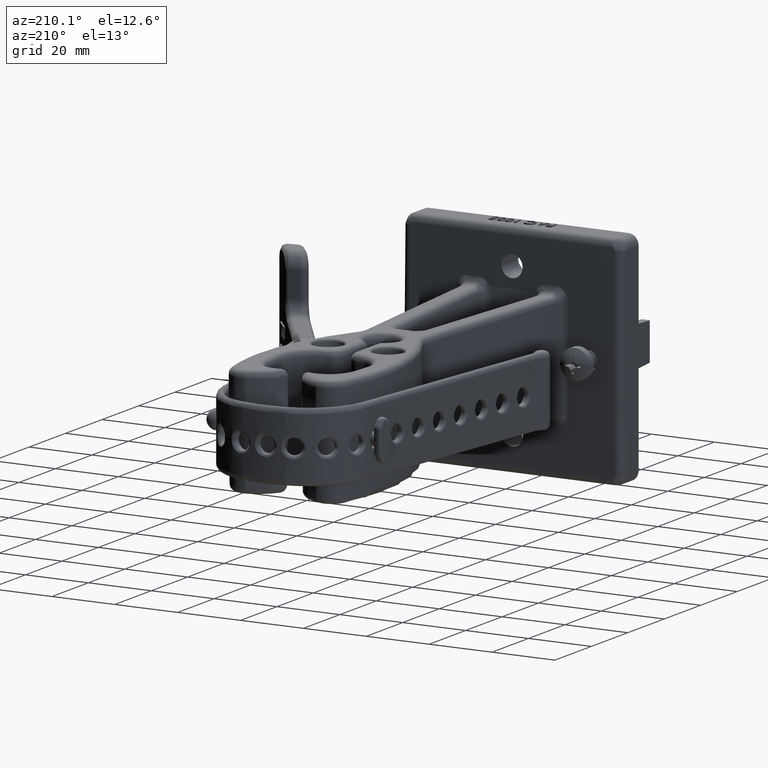
[diagram: clean part render]
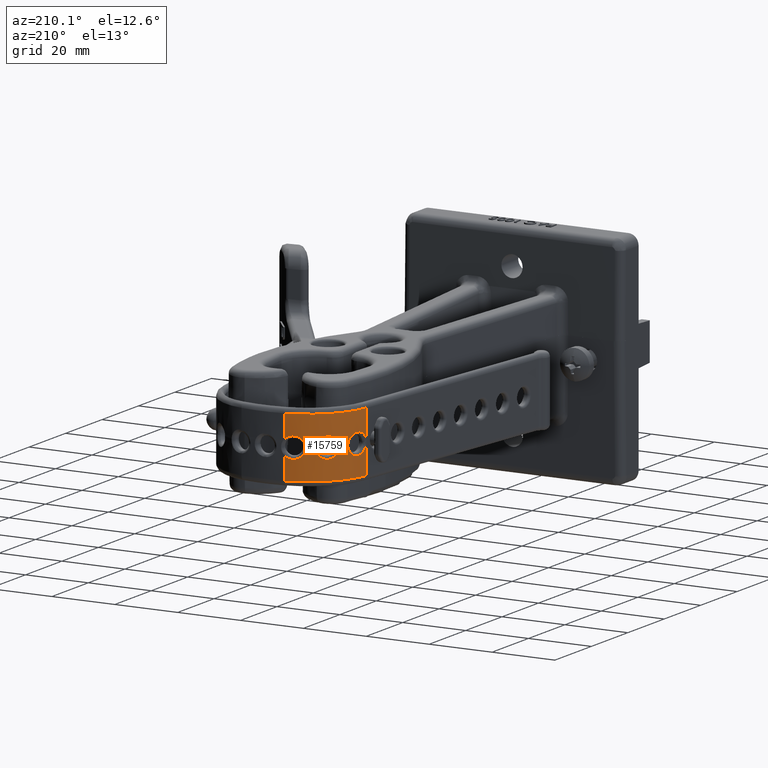
[diagram: same view with one face highlighted and labeled with its STEP entity id]
A machine part, auxiliary view. The second image highlights one B-rep face of the part: STEP entity #15759.
In plain terms, the highlighted cylindrical surface (partial cylindrical patch) has radius 19.9448 mm, axis along (0, 0, 1).
Its self-contained STEP definition (entity closure, byte-faithful):
#2503 = CARTESIAN_POINT ( 'NONE',  ( -0.8238750532993759400, 4.832999887512366800, 8.258270324734888000E-005 ) ) ;
#2504 = CARTESIAN_POINT ( 'NONE',  ( -0.9046058795028802900, 4.572830319396823400, -0.01562964901921960100 ) ) ;
#2509 = CARTESIAN_POINT ( 'NONE',  ( -0.5806278617910979300, 5.113719189892758100, 8.258270324746548600E-005 ) ) ;
#2510 = CARTESIAN_POINT ( 'NONE',  ( -0.7724659938447958600, 4.918951081787924700, -7.721247508028443000E-005 ) ) ;
#2550 = CARTESIAN_POINT ( 'NONE',  ( -0.2669934998263762100, 5.246135022495447100, -0.3749999999999998900 ) ) ;
#2551 = CARTESIAN_POINT ( 'NONE',  ( -0.2669934998263762100, 5.246135022495447100, -0.08806893851219231600 ) ) ;
#2552 = CARTESIAN_POINT ( 'NONE',  ( -0.2669934998263762100, 5.246135022495447100, 0.08806893851219189900 ) ) ;
#2553 = CARTESIAN_POINT ( 'NONE',  ( -0.2669934998263762100, 5.246135022495447100, 0.3750000000000000600 ) ) ;
#2561 = CARTESIAN_POINT ( 'NONE',  ( -0.9046058795028802900, 4.572830319396823400, 0.3750000000000000600 ) ) ;
#2562 = CARTESIAN_POINT ( 'NONE',  ( -0.9046058795028802900, 4.572830319396823400, -0.3749999999999998900 ) ) ;
#2563 = CARTESIAN_POINT ( 'NONE',  ( -0.9046058795028802900, 4.572830319396823400, 0.01562964901858396700 ) ) ;
#15759 = ADVANCED_FACE ( 'NONE', ( #25085, #25086 ), #25082, .T. ) ;
#16729 = VERTEX_POINT ( 'NONE', #2503 ) ;
#16731 = VERTEX_POINT ( 'NONE', #2504 ) ;
#16740 = VERTEX_POINT ( 'NONE', #2509 ) ;
#16742 = VERTEX_POINT ( 'NONE', #2510 ) ;
#16821 = VERTEX_POINT ( 'NONE', #2550 ) ;
#16823 = VERTEX_POINT ( 'NONE', #2551 ) ;
#16825 = VERTEX_POINT ( 'NONE', #2552 ) ;
#16827 = VERTEX_POINT ( 'NONE', #2553 ) ;
#16843 = VERTEX_POINT ( 'NONE', #2561 ) ;
#16845 = VERTEX_POINT ( 'NONE', #2562 ) ;
#16847 = VERTEX_POINT ( 'NONE', #2563 ) ;
#20179 = ORIENTED_EDGE ( 'NONE', *, *, #50050, .T. ) ;
#20180 = ORIENTED_EDGE ( 'NONE', *, *, #50131, .T. ) ;
#20181 = ORIENTED_EDGE ( 'NONE', *, *, #50106, .T. ) ;
#20182 = ORIENTED_EDGE ( 'NONE', *, *, #50132, .T. ) ;
#20183 = ORIENTED_EDGE ( 'NONE', *, *, #50111, .T. ) ;
#20184 = ORIENTED_EDGE ( 'NONE', *, *, #50128, .T. ) ;
#20185 = ORIENTED_EDGE ( 'NONE', *, *, #50134, .F. ) ;
#20186 = ORIENTED_EDGE ( 'NONE', *, *, #50044, .T. ) ;
#20187 = ORIENTED_EDGE ( 'NONE', *, *, #50124, .T. ) ;
#20188 = ORIENTED_EDGE ( 'NONE', *, *, #50136, .F. ) ;
#20189 = ORIENTED_EDGE ( 'NONE', *, *, #50129, .F. ) ;
#23963 = AXIS2_PLACEMENT_3D ( 'NONE', #41409, #41408, #41391 ) ;
#25082 = CYLINDRICAL_SURFACE ( 'NONE', #23963, 0.7852278687097016300 ) ;
#25085 = FACE_BOUND ( 'NONE', #48973, .T. ) ;
#25086 = FACE_OUTER_BOUND ( 'NONE', #48978, .T. ) ;
#30494 = AXIS2_PLACEMENT_3D ( 'NONE', #42698, #42705, #42706 ) ;
#30495 = AXIS2_PLACEMENT_3D ( 'NONE', #42702, #42707, #42708 ) ;
#37288 = VECTOR ( 'NONE', #42517, 39.37007874015748100 ) ;
#37289 = LINE ( 'NONE', #42516, #37288 ) ;
#37290 = VECTOR ( 'NONE', #42434, 39.37007874015748100 ) ;
#37292 = LINE ( 'NONE', #42410, #37290 ) ;
#38598 = B_SPLINE_CURVE_WITH_KNOTS ( 'NONE', 3,
 ( #40026, #41596, #41597, #41598, #41599, #41600, #41601, #41602, #41603, #41604, #41605, #41606, #41607, #41608, #41609, #41610, #41611, #41612, #41613, #41614, #41615, #41616, #41617, #41618, #41619, #41620, #41621, #41622, #41623, #41624, #41625, #41626, #41627, #41628 ),
 .UNSPECIFIED., .F., .F.,
 ( 4, 2, 2, 2, 2, 2, 2, 2, 2, 2, 2, 2, 2, 2, 2, 2, 4 ),
 ( 0.0004014216207782169800, 0.001052801804666286600, 0.001704181988554356100, 0.002355562172442424800, 0.003006942356330493600, 0.003658322540218562900, 0.004309702724106631800, 0.004961082907994700600, 0.005612463091882769400, 0.006263843275770838300, 0.006915223459658906300, 0.007566603643546975100, 0.008217983827435044000, 0.008869364011323112000, 0.009520744195211181700, 0.01017212437909925000, 0.01082350456298731800 ),
 .UNSPECIFIED. ) ;
#38602 = B_SPLINE_CURVE_WITH_KNOTS ( 'NONE', 3,
 ( #41671, #41676, #41677, #41678, #41679, #41680, #41681, #41682, #41683, #41684, #41685, #41686, #41687, #41688, #41689, #41690, #41691, #41692, #41693, #41694, #41695, #41696, #41697, #41698, #41699, #41700, #41701, #41702, #41703, #41704, #41705, #41706, #41707, #41708 ),
 .UNSPECIFIED., .F., .F.,
 ( 4, 2, 2, 2, 2, 2, 2, 2, 2, 2, 2, 2, 2, 2, 2, 2, 4 ),
 ( 1.961196961934722700E-006, 0.0006783076573385214600, 0.001354654117715108300, 0.002031000578091695000, 0.002707347038468281700, 0.003383693498844868300, 0.004060039959221455400, 0.004736386419598041600, 0.005412732879974628700, 0.006089079340351215800, 0.006765425800727802000, 0.007441772261104389100, 0.008118118721480976200, 0.008794465181857563300, 0.009470811642234148700, 0.01014715810261073600, 0.01082350456298732300 ),
 .UNSPECIFIED. ) ;
#38636 = B_SPLINE_CURVE_WITH_KNOTS ( 'NONE', 3,
 ( #42660, #42664, #42665, #42666, #42667, #42668, #42669, #42670, #42671, #42672, #42673, #42674, #42675, #42676, #42677, #42678, #42679, #42680, #42681, #42682, #42683, #42684, #42685, #42686, #42687, #42688, #42689, #42690, #42691, #42692, #42693, #42694 ),
 .UNSPECIFIED., .F., .F.,
 ( 4, 2, 2, 2, 2, 2, 2, 2, 2, 2, 2, 2, 2, 2, 2, 4 ),
 ( 0.01082350456298731800, 0.01147463559023208600, 0.01212576661747685200, 0.01277689764472162000, 0.01342802867196638900, 0.01473029072645589900, 0.01538142175370067400, 0.01603255278094544900, 0.01668368380819022400, 0.01733481483543499600, 0.01798594586267977100, 0.01863707688992454600, 0.01928820791716932100, 0.01993933894441409600, 0.02059046997165887200, 0.02124160099890364700 ),
 .UNSPECIFIED. ) ;
#38637 = B_SPLINE_CURVE_WITH_KNOTS ( 'NONE', 3,
 ( #42710, #42715, #42716, #42717, #42718, #42719, #42720, #42721, #42722, #42723, #42724, #42725, #42726, #42727, #42728, #42729, #42730, #42731, #42732, #42733, #42734, #42735, #42736, #42737, #42738, #42739, #42740, #42741, #42742, #42743, #42744, #42745, #42746, #42747 ),
 .UNSPECIFIED., .F., .F.,
 ( 4, 2, 2, 2, 2, 2, 2, 2, 2, 2, 2, 2, 2, 2, 2, 2, 4 ),
 ( 0.01082350456298732300, 0.01149985161718272000, 0.01217619867137811500, 0.01285254572557351300, 0.01352889277976891000, 0.01420523983396430700, 0.01488158688815970400, 0.01555793394235510000, 0.01623428099655049900, 0.01691062805074589800, 0.01758697510494129300, 0.01826332215913669200, 0.01893966921333208700, 0.01961601626752748600, 0.02029236332172288500, 0.02096871037591828400, 0.02164505743011368700 ),
 .UNSPECIFIED. ) ;
#38638 = B_SPLINE_CURVE_WITH_KNOTS ( 'NONE', 3,
 ( #42714, #42749, #42750, #42751, #42752, #42753, #42754, #42755, #42756, #42757, #42758, #42759, #42760, #42761, #42762, #42763, #42764, #42765, #42766, #42767, #42768, #42769, #42770, #42771, #42772, #42773, #42774, #42775, #42776, #42777, #42778, #42779, #42780, #42781, #42782, #42783, #42784, #42785, #42786, #42787, #42788, #42789, #42790, #42791, #42792, #42793, #42794, #42795, #42796, #42797, #42798, #42799, #42800, #42801 ),
 .UNSPECIFIED., .F., .F.,
 ( 4, 2, 2, 2, 2, 2, 2, 2, 2, 2, 2, 2, 2, 2, 2, 2, 2, 2, 2, 2, 2, 2, 2, 2, 2, 2, 4 ),
 ( 0.01315466823470624700, 0.01366816418692524300, 0.01418166013914424000, 0.01469515609136323700, 0.01520865204358223600, 0.01623564394802025400, 0.01726263585245827300, 0.01777613180467728000, 0.01828962775689629100, 0.01880312370911529900, 0.01931661966133430700, 0.01983011561355331800, 0.02034361156577232600, 0.02137060347021034500, 0.02239759537464836000, 0.02291109132686736800, 0.02342458727908637600, 0.02393808323130538700, 0.02445157918352439500, 0.02496507513574340600, 0.02547857108796241400, 0.02650556299240045700, 0.02753255489683850000, 0.02804605084905750800, 0.02855954680127651600, 0.02907304275349552300, 0.02958653870571453100 ),
 .UNSPECIFIED. ) ;
#40026 = CARTESIAN_POINT ( 'NONE',  ( -0.9046058795028802900, 4.572830319396823400, -0.01562964901921960100 ) ) ;
#41391 = DIRECTION ( 'NONE',  ( 1.000000000000000000, 0.0000000000000000000, 0.0000000000000000000 ) ) ;
#41408 = DIRECTION ( 'NONE',  ( 0.0000000000000000000, 0.0000000000000000000, 1.000000000000000000 ) ) ;
#41409 = CARTESIAN_POINT ( 'NONE',  ( -0.1256563924394588100, 4.473731871366530800, 0.0000000000000000000 ) ) ;
#41596 = CARTESIAN_POINT ( 'NONE',  ( -0.9044720777072163800, 4.573882049693032100, -0.02398984992228340300 ) ) ;
#41597 = CARTESIAN_POINT ( 'NONE',  ( -0.9042320265851664400, 4.575762813749543400, -0.03220101868346691300 ) ) ;
#41598 = CARTESIAN_POINT ( 'NONE',  ( -0.9035001220626451800, 4.581200301962903500, -0.04832121892999397000 ) ) ;
#41599 = CARTESIAN_POINT ( 'NONE',  ( -0.9030135475190852500, 4.584711787266298800, -0.05606138904049493700 ) ) ;
#41600 = CARTESIAN_POINT ( 'NONE',  ( -0.9017731494652258000, 4.593077871510717900, -0.07062649421987202100 ) ) ;
#41601 = CARTESIAN_POINT ( 'NONE',  ( -0.9010100846049531300, 4.597992906931248000, -0.07755247987892359400 ) ) ;
#41602 = CARTESIAN_POINT ( 'NONE',  ( -0.8991593229240614200, 4.609036599465781600, -0.09035686495205011400 ) ) ;
#41603 = CARTESIAN_POINT ( 'NONE',  ( -0.8980876879622834400, 4.615070753043769800, -0.09614587489038094200 ) ) ;
#41604 = CARTESIAN_POINT ( 'NONE',  ( -0.8955902828128075000, 4.628096991233039900, -0.1065602218101374100 ) ) ;
#41605 = CARTESIAN_POINT ( 'NONE',  ( -0.8941466442477282700, 4.635168437950653700, -0.1112210533022685900 ) ) ;
#41606 = CARTESIAN_POINT ( 'NONE',  ( -0.8909235487047899600, 4.649814839584304400, -0.1190711510346082200 ) ) ;
#41607 = CARTESIAN_POINT ( 'NONE',  ( -0.8891460011420268000, 4.657393217842299600, -0.1222863888965004700 ) ) ;
#41608 = CARTESIAN_POINT ( 'NONE',  ( -0.8852118804725129800, 4.673039004668280100, -0.1273216652216104800 ) ) ;
#41609 = CARTESIAN_POINT ( 'NONE',  ( -0.8830378820719231300, 4.681159619275471000, -0.1291354494483234500 ) ) ;
#41610 = CARTESIAN_POINT ( 'NONE',  ( -0.8784398385695588700, 4.697271744035717200, -0.1312093589991346100 ) ) ;
#41611 = CARTESIAN_POINT ( 'NONE',  ( -0.8760003240422250500, 4.705331705785496000, -0.1315007257749384900 ) ) ;
#41612 = CARTESIAN_POINT ( 'NONE',  ( -0.8708317082806750200, 4.721458025934294900, -0.1305733570352894100 ) ) ;
#41613 = CARTESIAN_POINT ( 'NONE',  ( -0.8681110567959492400, 4.729487866325726500, -0.1293391340900641200 ) ) ;
#41614 = CARTESIAN_POINT ( 'NONE',  ( -0.8626075953134920700, 4.744938401827712800, -0.1254347957094102700 ) ) ;
#41615 = CARTESIAN_POINT ( 'NONE',  ( -0.8597998962514744600, 4.752437968311646400, -0.1227632821381308600 ) ) ;
#41616 = CARTESIAN_POINT ( 'NONE',  ( -0.8541124957354046000, 4.766981727691558000, -0.1159171741951697400 ) ) ;
#41617 = CARTESIAN_POINT ( 'NONE',  ( -0.8513011390273188500, 4.773850507374808300, -0.1118200542732078500 ) ) ;
#41618 = CARTESIAN_POINT ( 'NONE',  ( -0.8458531433511635700, 4.786698537173372800, -0.1023750865851842200 ) ) ;
#41619 = CARTESIAN_POINT ( 'NONE',  ( -0.8431875283845267100, 4.792743371904957300, -0.09696808888752699000 ) ) ;
#41620 = CARTESIAN_POINT ( 'NONE',  ( -0.8381965330498317700, 4.803740684196352400, -0.08500767394831988700 ) ) ;
#41621 = CARTESIAN_POINT ( 'NONE',  ( -0.8359010968393969500, 4.808631807983259100, -0.07854120783002756200 ) ) ;
#41622 = CARTESIAN_POINT ( 'NONE',  ( -0.8317846993587687500, 4.817226153475144400, -0.06463035934134860000 ) ) ;
#41623 = CARTESIAN_POINT ( 'NONE',  ( -0.8299491544533128500, 4.820957406049180000, -0.05709298369152877200 ) ) ;
#41624 = CARTESIAN_POINT ( 'NONE',  ( -0.8269826450470918500, 4.826910797640579200, -0.04154863520051328700 ) ) ;
#41625 = CARTESIAN_POINT ( 'NONE',  ( -0.8258364692693744800, 4.829166266235714200, -0.03352463396658106300 ) ) ;
#41626 = CARTESIAN_POINT ( 'NONE',  ( -0.8242766646139679800, 4.832222407297931200, -0.01696119573882316800 ) ) ;
#41627 = CARTESIAN_POINT ( 'NONE',  ( -0.8238724714747820400, 4.833004905153875300, -0.008397400685372003300 ) ) ;
#41628 = CARTESIAN_POINT ( 'NONE',  ( -0.8238750532993759400, 4.832999887512366800, 8.258270324734888000E-005 ) ) ;
#41671 = CARTESIAN_POINT ( 'NONE',  ( -0.7724659938447958600, 4.918951081787924700, -7.721247508028443000E-005 ) ) ;
#41676 = CARTESIAN_POINT ( 'NONE',  ( -0.7724628627254092100, 4.918955630643937500, -0.008953148986870686900 ) ) ;
#41677 = CARTESIAN_POINT ( 'NONE',  ( -0.7719266417373472600, 4.919737433344108600, -0.01766103331284528100 ) ) ;
#41678 = CARTESIAN_POINT ( 'NONE',  ( -0.7698277671063384900, 4.922763536733540900, -0.03475821298568483600 ) ) ;
#41679 = CARTESIAN_POINT ( 'NONE',  ( -0.7682355251786601200, 4.925049675602147100, -0.04324383618814475100 ) ) ;
#41680 = CARTESIAN_POINT ( 'NONE',  ( -0.7640806155682554600, 4.930908219808044300, -0.05928754066594894800 ) ) ;
#41681 = CARTESIAN_POINT ( 'NONE',  ( -0.7615327255869879200, 4.934459978186318100, -0.06686058854384886700 ) ) ;
#41682 = CARTESIAN_POINT ( 'NONE',  ( -0.7554614106431104500, 4.942725195963364000, -0.08113618977089874500 ) ) ;
#41683 = CARTESIAN_POINT ( 'NONE',  ( -0.7519231597943156800, 4.947455092017000000, -0.08782512047080887100 ) ) ;
#41684 = CARTESIAN_POINT ( 'NONE',  ( -0.7441194762610708900, 4.957598761767614300, -0.09976437087428068100 ) ) ;
#41685 = CARTESIAN_POINT ( 'NONE',  ( -0.7398222323129969300, 4.963057331367162200, -0.1051003989423997000 ) ) ;
#41686 = CARTESIAN_POINT ( 'NONE',  ( -0.7303611259010304200, 4.974702199830770300, -0.1144930709336284700 ) ) ;
#41687 = CARTESIAN_POINT ( 'NONE',  ( -0.7253120976819572600, 4.980744945333735400, -0.1184279848731520500 ) ) ;
#41688 = CARTESIAN_POINT ( 'NONE',  ( -0.7146598257904026600, 4.993081635498903400, -0.1247719188863560000 ) ) ;
#41689 = CARTESIAN_POINT ( 'NONE',  ( -0.7089892921654977800, 4.999451070150590800, -0.1272091455568324900 ) ) ;
#41690 = CARTESIAN_POINT ( 'NONE',  ( -0.6972412838053490000, 5.012200681823723700, -0.1304495443038769000 ) ) ;
#41691 = CARTESIAN_POINT ( 'NONE',  ( -0.6912312794540113000, 5.018511300809001000, -0.1312504949417558400 ) ) ;
#41692 = CARTESIAN_POINT ( 'NONE',  ( -0.6789339858556515700, 5.030996157131169400, -0.1312495046036039300 ) ) ;
#41693 = CARTESIAN_POINT ( 'NONE',  ( -0.6725873699145763500, 5.037224280620690400, -0.1304228537494804800 ) ) ;
#41694 = CARTESIAN_POINT ( 'NONE',  ( -0.6600786175554317300, 5.049101382820723800, -0.1271797026016108200 ) ) ;
#41695 = CARTESIAN_POINT ( 'NONE',  ( -0.6538797656495266600, 5.054791381308736400, -0.1247781291707470600 ) ) ;
#41696 = CARTESIAN_POINT ( 'NONE',  ( -0.6416263793095184900, 5.065698980882768200, -0.1183865588218406300 ) ) ;
#41697 = CARTESIAN_POINT ( 'NONE',  ( -0.6356005020555605100, 5.070887441238709500, -0.1143908736261220100 ) ) ;
#41698 = CARTESIAN_POINT ( 'NONE',  ( -0.6242344715330954100, 5.080409436971873300, -0.1050933037585521400 ) ) ;
#41699 = CARTESIAN_POINT ( 'NONE',  ( -0.6188252007694414700, 5.084804092754178700, -0.09975621512175915400 ) ) ;
#41700 = CARTESIAN_POINT ( 'NONE',  ( -0.6086807788254529100, 5.092853971939337800, -0.08765120883198787600 ) ) ;
#41701 = CARTESIAN_POINT ( 'NONE',  ( -0.6041011625608685400, 5.096387011459770900, -0.08107012315094132300 ) ) ;
#41702 = CARTESIAN_POINT ( 'NONE',  ( -0.5959720352361080900, 5.102549824101529000, -0.06686099343472731700 ) ) ;
#41703 = CARTESIAN_POINT ( 'NONE',  ( -0.5923903396333148900, 5.105202420052448200, -0.05913324697689913100 ) ) ;
#41704 = CARTESIAN_POINT ( 'NONE',  ( -0.5866110104397922500, 5.109433429855274200, -0.04307413174536804700 ) ) ;
#41705 = CARTESIAN_POINT ( 'NONE',  ( -0.5844014703679049100, 5.111022361993386600, -0.03477251419683192300 ) ) ;
#41706 = CARTESIAN_POINT ( 'NONE',  ( -0.5813989093600574500, 5.113173013488205000, -0.01761556919737574500 ) ) ;
#41707 = CARTESIAN_POINT ( 'NONE',  ( -0.5806230863419455900, 5.113722584793025700, -0.008722423790365044200 ) ) ;
#41708 = CARTESIAN_POINT ( 'NONE',  ( -0.5806278617910979300, 5.113719189892758100, 8.258270324746548600E-005 ) ) ;
#42410 = CARTESIAN_POINT ( 'NONE',  ( -0.2669934998263762100, 5.246135022495447100, 0.3750000000000000600 ) ) ;
#42434 = DIRECTION ( 'NONE',  ( 0.0000000000000000000, 0.0000000000000000000, -1.000000000000000000 ) ) ;
#42516 = CARTESIAN_POINT ( 'NONE',  ( -0.2669934998263762100, 5.246135022495447100, 0.3750000000000000600 ) ) ;
#42517 = DIRECTION ( 'NONE',  ( 0.0000000000000000000, 0.0000000000000000000, -1.000000000000000000 ) ) ;
#42660 = CARTESIAN_POINT ( 'NONE',  ( -0.8238750532993759400, 4.832999887512366800, 8.258270324734888000E-005 ) ) ;
#42664 = CARTESIAN_POINT ( 'NONE',  ( -0.8238776341364072400, 4.832994871790134500, 0.008559322449753260100 ) ) ;
#42665 = CARTESIAN_POINT ( 'NONE',  ( -0.8242869808322169600, 4.832202344609140000, 0.01712090560345982900 ) ) ;
#42666 = CARTESIAN_POINT ( 'NONE',  ( -0.8258546394172030500, 4.829130512548633000, 0.03366649585325521400 ) ) ;
#42667 = CARTESIAN_POINT ( 'NONE',  ( -0.8270044860376027900, 4.826867531662975900, 0.04168724969756561900 ) ) ;
#42668 = CARTESIAN_POINT ( 'NONE',  ( -0.8299807679300810200, 4.820893385731964500, 0.05723402907332865400 ) ) ;
#42669 = CARTESIAN_POINT ( 'NONE',  ( -0.8318175955121514000, 4.817158582062755400, 0.06475588167079407400 ) ) ;
#42670 = CARTESIAN_POINT ( 'NONE',  ( -0.8359369874183084600, 4.808555745576827100, 0.07864789973177227500 ) ) ;
#42671 = CARTESIAN_POINT ( 'NONE',  ( -0.8382352131771038100, 4.803657424114885700, 0.08511172646409478900 ) ) ;
#42672 = CARTESIAN_POINT ( 'NONE',  ( -0.8457376730857838500, 4.787120314593528800, 0.1030562307982276100 ) ) ;
#42673 = CARTESIAN_POINT ( 'NONE',  ( -0.8513160486693720500, 4.774138634888271500, 0.1125641151251555700 ) ) ;
#42674 = CARTESIAN_POINT ( 'NONE',  ( -0.8598351781961696100, 4.752344783766364600, 0.1227991265487142200 ) ) ;
#42675 = CARTESIAN_POINT ( 'NONE',  ( -0.8626395755035021200, 4.744851328228649300, 0.1254623388366527800 ) ) ;
#42676 = CARTESIAN_POINT ( 'NONE',  ( -0.8681378130983743400, 4.729410012756710000, 0.1293532084382281500 ) ) ;
#42677 = CARTESIAN_POINT ( 'NONE',  ( -0.8708567139301275400, 4.721382703155704500, 0.1305822629603956300 ) ) ;
#42678 = CARTESIAN_POINT ( 'NONE',  ( -0.8760221199928109900, 4.705260980873294600, 0.1315001769165925800 ) ) ;
#42679 = CARTESIAN_POINT ( 'NONE',  ( -0.8784602183631046200, 4.697203026942944800, 0.1312046676407691800 ) ) ;
#42680 = CARTESIAN_POINT ( 'NONE',  ( -0.8830557275344705900, 4.681094367728747800, 0.1291228620339446900 ) ) ;
#42681 = CARTESIAN_POINT ( 'NONE',  ( -0.8852278845730094900, 4.672977888141788900, 0.1273058862532771000 ) ) ;
#42682 = CARTESIAN_POINT ( 'NONE',  ( -0.8891594150618090700, 4.657337321474448900, 0.1222644804483426900 ) ) ;
#42683 = CARTESIAN_POINT ( 'NONE',  ( -0.8909366343824755000, 4.649758110106787100, 0.1190454213638289100 ) ) ;
#42684 = CARTESIAN_POINT ( 'NONE',  ( -0.8941601039457248700, 4.635104517234715600, 0.1111820788935559100 ) ) ;
#42685 = CARTESIAN_POINT ( 'NONE',  ( -0.8956002303156285200, 4.628047089265557200, 0.1065246576833181900 ) ) ;
#42686 = CARTESIAN_POINT ( 'NONE',  ( -0.8980944616911773500, 4.615033425248237900, 0.09611167056578377700 ) ) ;
#42687 = CARTESIAN_POINT ( 'NONE',  ( -0.8991658399529685000, 4.608999480138622900, 0.09031978167258535000 ) ) ;
#42688 = CARTESIAN_POINT ( 'NONE',  ( -0.9010171580036041600, 4.597948917698174900, 0.07749547963555490600 ) ) ;
#42689 = CARTESIAN_POINT ( 'NONE',  ( -0.9017763874770453600, 4.593056608797411400, 0.07059348826270574200 ) ) ;
#42690 = CARTESIAN_POINT ( 'NONE',  ( -0.9030149302985032200, 4.584701882079968100, 0.05604011761536342000 ) ) ;
#42691 = CARTESIAN_POINT ( 'NONE',  ( -0.9035015720540029400, 4.581189703906926700, 0.04829410256715477300 ) ) ;
#42692 = CARTESIAN_POINT ( 'NONE',  ( -0.9042323566646289800, 4.575760186822136300, 0.03218891722749529800 ) ) ;
#42693 = CARTESIAN_POINT ( 'NONE',  ( -0.9044721660742888200, 4.573881355096018500, 0.02398432857308217800 ) ) ;
#42694 = CARTESIAN_POINT ( 'NONE',  ( -0.9046058795028802900, 4.572830319396823400, 0.01562964901858396700 ) ) ;
#42698 = CARTESIAN_POINT ( 'NONE',  ( -0.1256563924394588100, 4.473731871366530800, -0.3749999999999998900 ) ) ;
#42702 = CARTESIAN_POINT ( 'NONE',  ( -0.1256563924394588100, 4.473731871366530800, 0.3750000000000000600 ) ) ;
#42705 = DIRECTION ( 'NONE',  ( 0.0000000000000000000, 0.0000000000000000000, 1.000000000000000000 ) ) ;
#42706 = DIRECTION ( 'NONE',  ( 1.000000000000000000, 0.0000000000000000000, 0.0000000000000000000 ) ) ;
#42707 = DIRECTION ( 'NONE',  ( 0.0000000000000000000, 0.0000000000000000000, 1.000000000000000000 ) ) ;
#42708 = DIRECTION ( 'NONE',  ( 1.000000000000000000, 0.0000000000000000000, 0.0000000000000000000 ) ) ;
#42710 = CARTESIAN_POINT ( 'NONE',  ( -0.5806278617910979300, 5.113719189892758100, 8.258270324746548600E-005 ) ) ;
#42714 = CARTESIAN_POINT ( 'NONE',  ( -0.2669934998263762100, 5.246135022495447100, 0.08806893851219189900 ) ) ;
#42715 = CARTESIAN_POINT ( 'NONE',  ( -0.5806326372444432500, 5.113715794989513300, 0.008887596927481471200 ) ) ;
#42716 = CARTESIAN_POINT ( 'NONE',  ( -0.5814184722267916600, 5.113159100511884600, 0.01778094925790704400 ) ) ;
#42717 = CARTESIAN_POINT ( 'NONE',  ( -0.5844379613216441600, 5.110996123304908600, 0.03492642412609794900 ) ) ;
#42718 = CARTESIAN_POINT ( 'NONE',  ( -0.5866561888644497000, 5.109400753489573800, 0.04322816154078489000 ) ) ;
#42719 = CARTESIAN_POINT ( 'NONE',  ( -0.5924595695623944300, 5.105151330863445300, 0.05929655735297695300 ) ) ;
#42720 = CARTESIAN_POINT ( 'NONE',  ( -0.5960440626226430900, 5.102496019113038600, 0.06700527939610208300 ) ) ;
#42721 = CARTESIAN_POINT ( 'NONE',  ( -0.6041868058040944500, 5.096321268350471300, 0.08120107425594271000 ) ) ;
#42722 = CARTESIAN_POINT ( 'NONE',  ( -0.6087906852757217800, 5.092768240997685300, 0.08779867123012231900 ) ) ;
#42723 = CARTESIAN_POINT ( 'NONE',  ( -0.6189383130218733000, 5.084712819242189300, 0.09987451085136749000 ) ) ;
#42724 = CARTESIAN_POINT ( 'NONE',  ( -0.6243410812231993100, 5.080321867533668500, 0.1051922129327644800 ) ) ;
#42725 = CARTESIAN_POINT ( 'NONE',  ( -0.6357128940556026100, 5.070791506107055600, 0.1144708832456607000 ) ) ;
#42726 = CARTESIAN_POINT ( 'NONE',  ( -0.6417490120301007100, 5.065592017601932900, 0.1184612629491612600 ) ) ;
#42727 = CARTESIAN_POINT ( 'NONE',  ( -0.6539945981389095900, 5.054686917042190000, 0.1248270805679702200 ) ) ;
#42728 = CARTESIAN_POINT ( 'NONE',  ( -0.6601908160220350000, 5.048997148801760200, 0.1272182000448726400 ) ) ;
#42729 = CARTESIAN_POINT ( 'NONE',  ( -0.6726972525719862000, 5.037117606687235000, 0.1304417668468855800 ) ) ;
#42730 = CARTESIAN_POINT ( 'NONE',  ( -0.6790435863553137000, 5.030887327135880900, 0.1312589663718447000 ) ) ;
#42731 = CARTESIAN_POINT ( 'NONE',  ( -0.6913391142622655700, 5.018399335526779300, 0.1312408820433100500 ) ) ;
#42732 = CARTESIAN_POINT ( 'NONE',  ( -0.6973484515423148400, 5.012086919048491600, 0.1304303619621407800 ) ) ;
#42733 = CARTESIAN_POINT ( 'NONE',  ( -0.7090954612420203900, 4.999333261015291200, 0.1271692940472172200 ) ) ;
#42734 = CARTESIAN_POINT ( 'NONE',  ( -0.7147601879066929300, 4.992967800272806400, 0.1247236411062356300 ) ) ;
#42735 = CARTESIAN_POINT ( 'NONE',  ( -0.7254108435604645900, 4.980628142867522500, 0.1183574675807969500 ) ) ;
#42736 = CARTESIAN_POINT ( 'NONE',  ( -0.7304721267632984200, 4.974567929461888300, 0.1143977866349046200 ) ) ;
#42737 = CARTESIAN_POINT ( 'NONE',  ( -0.7399094404707985400, 4.962947593270875800, 0.1049985915323795500 ) ) ;
#42738 = CARTESIAN_POINT ( 'NONE',  ( -0.7442004157090423800, 4.957495237827849600, 0.09965700040549518900 ) ) ;
#42739 = CARTESIAN_POINT ( 'NONE',  ( -0.7519976661346773300, 4.947356524777185300, 0.08769433528258234500 ) ) ;
#42740 = CARTESIAN_POINT ( 'NONE',  ( -0.7555335716201906400, 4.942628094940769000, 0.08098798045593153000 ) ) ;
#42741 = CARTESIAN_POINT ( 'NONE',  ( -0.7615841171632719000, 4.934388856836686300, 0.06671784396223977300 ) ) ;
#42742 = CARTESIAN_POINT ( 'NONE',  ( -0.7641251963877739900, 4.930845885762890300, 0.05914382043507231800 ) ) ;
#42743 = CARTESIAN_POINT ( 'NONE',  ( -0.7682688818727332300, 4.925002105480324100, 0.04308607081743056500 ) ) ;
#42744 = CARTESIAN_POINT ( 'NONE',  ( -0.7698534446466609400, 4.922726650405558700, 0.03460166409268072800 ) ) ;
#42745 = CARTESIAN_POINT ( 'NONE',  ( -0.7719389133645963000, 4.919719603062599600, 0.01750748949154505600 ) ) ;
#42746 = CARTESIAN_POINT ( 'NONE',  ( -0.7724691249669315400, 4.918946532927916900, 0.008798731829606752000 ) ) ;
#42747 = CARTESIAN_POINT ( 'NONE',  ( -0.7724659938447958600, 4.918951081787924700, -7.721247508028443000E-005 ) ) ;
#42749 = CARTESIAN_POINT ( 'NONE',  ( -0.2716418785017149500, 5.245284445442451600, 0.09295331642992728200 ) ) ;
#42750 = CARTESIAN_POINT ( 'NONE',  ( -0.2766710282208270100, 5.244320010839742500, 0.09750787614049354100 ) ) ;
#42751 = CARTESIAN_POINT ( 'NONE',  ( -0.2871703055395948800, 5.242187957810022800, 0.1057345191548691700 ) ) ;
#42752 = CARTESIAN_POINT ( 'NONE',  ( -0.2926768746888245800, 5.241013948527803600, 0.1094466351722274800 ) ) ;
#42753 = CARTESIAN_POINT ( 'NONE',  ( -0.3041896045736363600, 5.238417113534036500, 0.1160788762825772000 ) ) ;
#42754 = CARTESIAN_POINT ( 'NONE',  ( -0.3102380132173951900, 5.236983004248482000, 0.1190105660539648200 ) ) ;
#42755 = CARTESIAN_POINT ( 'NONE',  ( -0.3224870308590499500, 5.233916300537456900, 0.1239095342065184400 ) ) ;
#42756 = CARTESIAN_POINT ( 'NONE',  ( -0.3287169460156694800, 5.232278091193010500, 0.1259003723624121100 ) ) ;
#42757 = CARTESIAN_POINT ( 'NONE',  ( -0.3477100135933560700, 5.227023047515687400, 0.1305173613848333300 ) ) ;
#42758 = CARTESIAN_POINT ( 'NONE',  ( -0.3608762276763222700, 5.223021988540609500, 0.1317555295406110700 ) ) ;
#42759 = CARTESIAN_POINT ( 'NONE',  ( -0.3864235644999410300, 5.214518299805377000, 0.1303599306147716400 ) ) ;
#42760 = CARTESIAN_POINT ( 'NONE',  ( -0.3991743042066984200, 5.209892736746245300, 0.1277036694802515500 ) ) ;
#42761 = CARTESIAN_POINT ( 'NONE',  ( -0.4169640922215997500, 5.202952788057730000, 0.1209833040806209700 ) ) ;
#42762 = CARTESIAN_POINT ( 'NONE',  ( -0.4226993329383986800, 5.200632376751376500, 0.1182928169195801200 ) ) ;
#42763 = CARTESIAN_POINT ( 'NONE',  ( -0.4337798987036367600, 5.196005197827137300, 0.1119839450841549100 ) ) ;
#42764 = CARTESIAN_POINT ( 'NONE',  ( -0.4391330193976070200, 5.193693646213698200, 0.1083475738597598900 ) ) ;
#42765 = CARTESIAN_POINT ( 'NONE',  ( -0.4491038104464119600, 5.189269655606310900, 0.1003577020786959200 ) ) ;
#42766 = CARTESIAN_POINT ( 'NONE',  ( -0.4537689327017107600, 5.187137781405705400, 0.09598132852273944000 ) ) ;
#42767 = CARTESIAN_POINT ( 'NONE',  ( -0.4624633283541941800, 5.183074468054405400, 0.08645122658201877300 ) ) ;
#42768 = CARTESIAN_POINT ( 'NONE',  ( -0.4665202063084891200, 5.181129105027062000, 0.08124858993008993200 ) ) ;
#42769 = CARTESIAN_POINT ( 'NONE',  ( -0.4737496045659476100, 5.177599828775711900, 0.07033901666045835900 ) ) ;
#42770 = CARTESIAN_POINT ( 'NONE',  ( -0.4769449154460997900, 5.176005960610542200, 0.06462046632775679500 ) ) ;
#42771 = CARTESIAN_POINT ( 'NONE',  ( -0.4825095596914985000, 5.173194765194273800, 0.05265342217814249900 ) ) ;
#42772 = CARTESIAN_POINT ( 'NONE',  ( -0.4848939974800677800, 5.171969488300831600, 0.04635055591413664300 ) ) ;
#42773 = CARTESIAN_POINT ( 'NONE',  ( -0.4906202569831030800, 5.169003520789857500, 0.02699047799875387700 ) ) ;
#42774 = CARTESIAN_POINT ( 'NONE',  ( -0.4925475893618128700, 5.167975096341428400, 0.01370181958577856900 ) ) ;
#42775 = CARTESIAN_POINT ( 'NONE',  ( -0.4925512475722059200, 5.167973163051044600, -0.01366382352568974900 ) ) ;
#42776 = CARTESIAN_POINT ( 'NONE',  ( -0.4906276600818349500, 5.168999678329959700, -0.02696405778617690100 ) ) ;
#42777 = CARTESIAN_POINT ( 'NONE',  ( -0.4848920120017358200, 5.171970520674595000, -0.04635796379372335300 ) ) ;
#42778 = CARTESIAN_POINT ( 'NONE',  ( -0.4825149454457206000, 5.173192005154947800, -0.05263965114247876700 ) ) ;
#42779 = CARTESIAN_POINT ( 'NONE',  ( -0.4769552617735224900, 5.176000772869110200, -0.06460039855590230000 ) ) ;
#42780 = CARTESIAN_POINT ( 'NONE',  ( -0.4737605831928515300, 5.177594420461771200, -0.07032117114103048100 ) ) ;
#42781 = CARTESIAN_POINT ( 'NONE',  ( -0.4665245592898850100, 5.181127028592644700, -0.08124329647527808700 ) ) ;
#42782 = CARTESIAN_POINT ( 'NONE',  ( -0.4624721498802779100, 5.183070240518665300, -0.08643995633201319300 ) ) ;
#42783 = CARTESIAN_POINT ( 'NONE',  ( -0.4537882518356362000, 5.187128857105220100, -0.09596174805069472600 ) ) ;
#42784 = CARTESIAN_POINT ( 'NONE',  ( -0.4491262931976863800, 5.189259493269727100, -0.1003377567924656200 ) ) ;
#42785 = CARTESIAN_POINT ( 'NONE',  ( -0.4391553868412270700, 5.193683907902341800, -0.1083315707815792900 ) ) ;
#42786 = CARTESIAN_POINT ( 'NONE',  ( -0.4338005304797342100, 5.195996351571949400, -0.1119704116604484000 ) ) ;
#42787 = CARTESIAN_POINT ( 'NONE',  ( -0.4227299774114952600, 5.200619809281896300, -0.1182771472540396200 ) ) ;
#42788 = CARTESIAN_POINT ( 'NONE',  ( -0.4169977746498695900, 5.202939326510530400, -0.1209685394068678600 ) ) ;
#42789 = CARTESIAN_POINT ( 'NONE',  ( -0.3992099957162029700, 5.209879453881481700, -0.1276942500224473600 ) ) ;
#42790 = CARTESIAN_POINT ( 'NONE',  ( -0.3864651427068321900, 5.214503803988926700, -0.1303542230515043800 ) ) ;
#42791 = CARTESIAN_POINT ( 'NONE',  ( -0.3609034171535553400, 5.223013592577127700, -0.1317574712337155600 ) ) ;
#42792 = CARTESIAN_POINT ( 'NONE',  ( -0.3477361320368841900, 5.227015398002379200, -0.1305213408467797200 ) ) ;
#42793 = CARTESIAN_POINT ( 'NONE',  ( -0.3287390733338476600, 5.232272179873392700, -0.1259069327723721900 ) ) ;
#42794 = CARTESIAN_POINT ( 'NONE',  ( -0.3224997581372010000, 5.233913149037731700, -0.1239148486737036000 ) ) ;
#42795 = CARTESIAN_POINT ( 'NONE',  ( -0.3102171264549416500, 5.236988198559894900, -0.1190019880696534400 ) ) ;
#42796 = CARTESIAN_POINT ( 'NONE',  ( -0.3041835239108527400, 5.238418448286649800, -0.1160750801462681800 ) ) ;
#42797 = CARTESIAN_POINT ( 'NONE',  ( -0.2926922921562576900, 5.241010507716464600, -0.1094558098068350000 ) ) ;
#42798 = CARTESIAN_POINT ( 'NONE',  ( -0.2871858187702348000, 5.242184755235577100, -0.1057461071998930800 ) ) ;
#42799 = CARTESIAN_POINT ( 'NONE',  ( -0.2766702228364182900, 5.244320226668010700, -0.09750781154344634300 ) ) ;
#42800 = CARTESIAN_POINT ( 'NONE',  ( -0.2716269312124040000, 5.245287180551224000, -0.09293761026333985400 ) ) ;
#42801 = CARTESIAN_POINT ( 'NONE',  ( -0.2669934998263762100, 5.246135022495447100, -0.08806893851219231600 ) ) ;
#42805 = CARTESIAN_POINT ( 'NONE',  ( -0.9046058795028802900, 4.572830319396823400, 0.3750000000000000600 ) ) ;
#42806 = DIRECTION ( 'NONE',  ( 0.0000000000000000000, 0.0000000000000000000, -1.000000000000000000 ) ) ;
#42810 = CARTESIAN_POINT ( 'NONE',  ( -0.9046058795028802900, 4.572830319396823400, 0.3750000000000000600 ) ) ;
#42811 = DIRECTION ( 'NONE',  ( 0.0000000000000000000, 0.0000000000000000000, -1.000000000000000000 ) ) ;
#43995 = VECTOR ( 'NONE', #42806, 39.37007874015748100 ) ;
#43997 = LINE ( 'NONE', #42810, #44002 ) ;
#43998 = CIRCLE ( 'NONE', #30494, 0.7852278687097016300 ) ;
#43999 = CIRCLE ( 'NONE', #30495, 0.7852278687097016300 ) ;
#44000 = LINE ( 'NONE', #42805, #43995 ) ;
#44002 = VECTOR ( 'NONE', #42811, 39.37007874015748100 ) ;
#48973 = EDGE_LOOP ( 'NONE', ( #20179, #20180 ) ) ;
#48978 = EDGE_LOOP ( 'NONE', ( #20181, #20182, #20183, #20184, #20185, #20186, #20187, #20188, #20189 ) ) ;
#50044 = EDGE_CURVE ( 'NONE', #16731, #16729, #38598, .T. ) ;
#50050 = EDGE_CURVE ( 'NONE', #16742, #16740, #38602, .T. ) ;
#50106 = EDGE_CURVE ( 'NONE', #16827, #16825, #37292, .T. ) ;
#50111 = EDGE_CURVE ( 'NONE', #16823, #16821, #37289, .T. ) ;
#50124 = EDGE_CURVE ( 'NONE', #16729, #16847, #38636, .T. ) ;
#50128 = EDGE_CURVE ( 'NONE', #16821, #16845, #43998, .T. ) ;
#50129 = EDGE_CURVE ( 'NONE', #16827, #16843, #43999, .T. ) ;
#50131 = EDGE_CURVE ( 'NONE', #16740, #16742, #38637, .T. ) ;
#50132 = EDGE_CURVE ( 'NONE', #16825, #16823, #38638, .T. ) ;
#50134 = EDGE_CURVE ( 'NONE', #16731, #16845, #44000, .T. ) ;
#50136 = EDGE_CURVE ( 'NONE', #16843, #16847, #43997, .T. ) ;